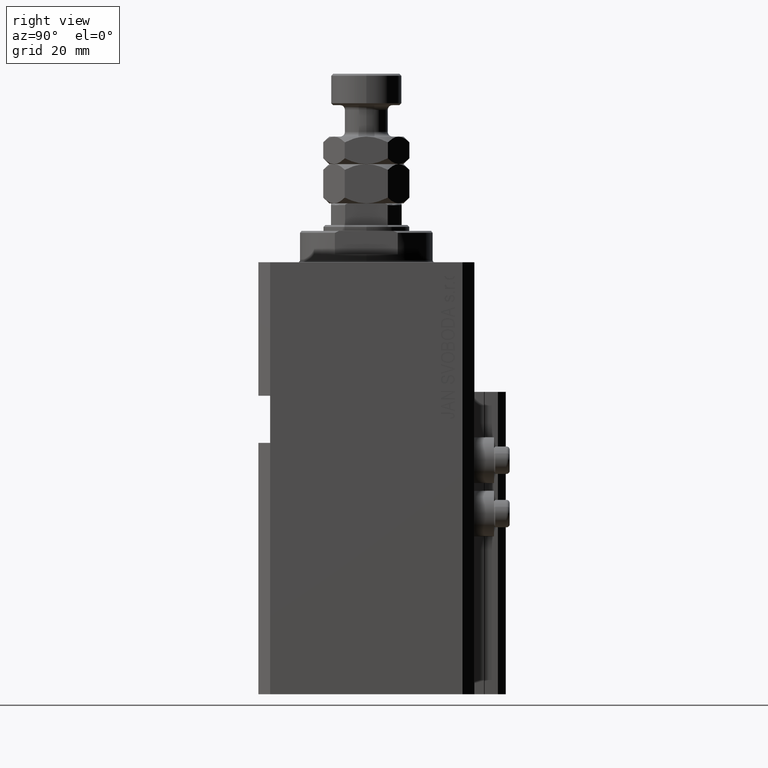
[diagram: clean part render]
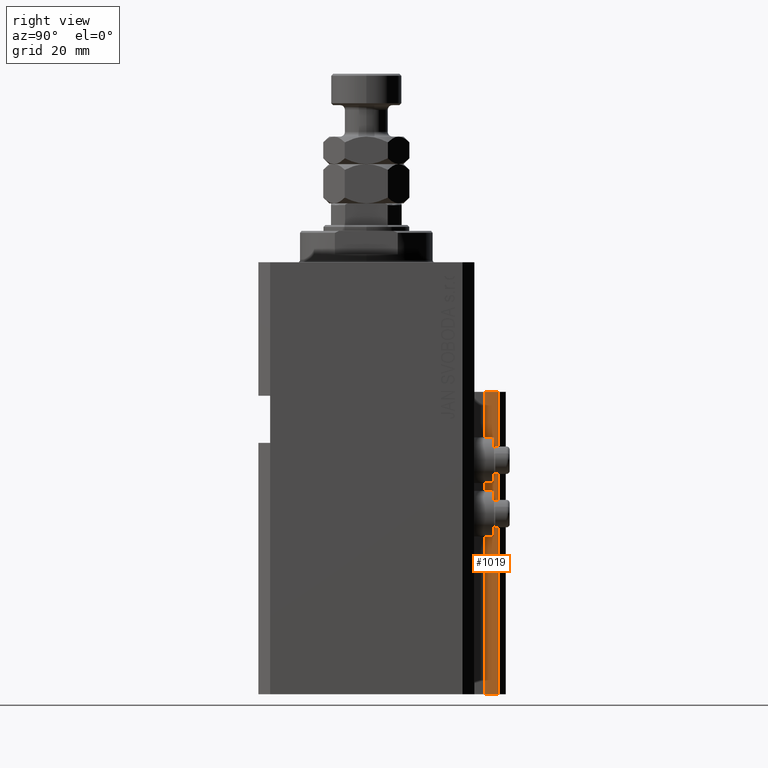
[diagram: same view with one face highlighted and labeled with its STEP entity id]
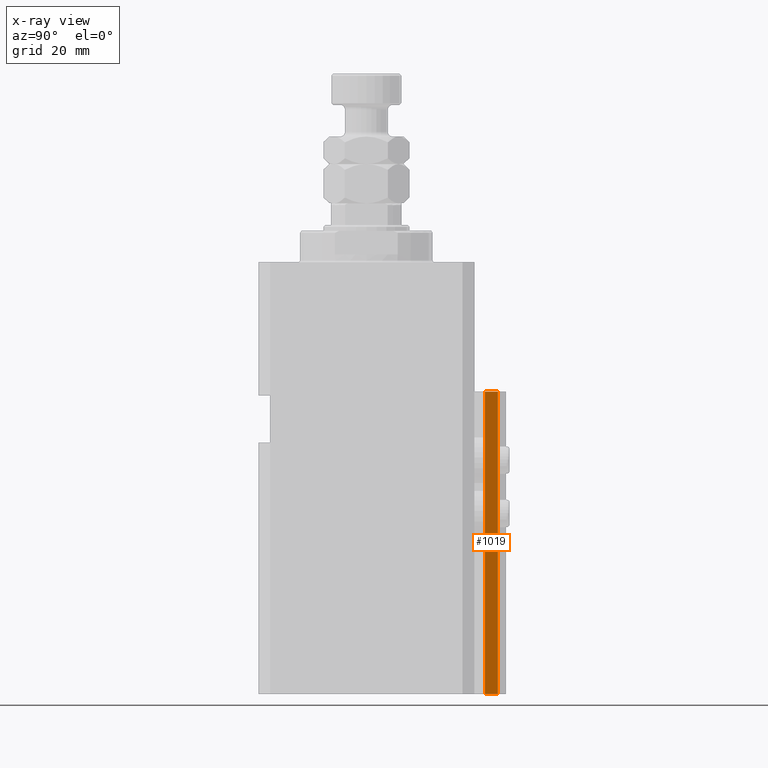
[diagram: x-ray of the same camera — body ghosted, the highlighted face saturated]
A machine part, right view. The second image highlights one B-rep face of the part: STEP entity #1019.
The next image is the same camera in x-ray: the body ghosted, the highlighted face saturated — about 0% of this face is hidden behind the body in this view.
In plain terms, the highlighted planar face has unit normal (1, 0, 0).
Its self-contained STEP definition (entity closure, byte-faithful):
#265 = LINE ( 'NONE', #41876, #15796 ) ;
#922 = DIRECTION ( 'NONE',  ( 0.000000000000000000, 0.000000000000000000, 1.000000000000000000 ) ) ;
#1019 = ADVANCED_FACE ( 'NONE', ( #37627 ), #41343, .T. ) ;
#1188 = EDGE_CURVE ( 'NONE', #2620, #20755, #28899, .T. ) ;
#2423 = ORIENTED_EDGE ( 'NONE', *, *, #6852, .F. ) ;
#2620 = VERTEX_POINT ( 'NONE', #40672 ) ;
#2672 = VERTEX_POINT ( 'NONE', #17640 ) ;
#2862 = CARTESIAN_POINT ( 'NONE',  ( 12.00000000000000178, 30.20000000000002061, -110.0000000000000000 ) ) ;
#3949 = DIRECTION ( 'NONE',  ( -5.256737805990334897E-16, 1.000000000000000000, 0.000000000000000000 ) ) ;
#4138 = VERTEX_POINT ( 'NONE', #48837 ) ;
#6852 = EDGE_CURVE ( 'NONE', #4138, #2672, #8172, .T. ) ;
#7144 = VECTOR ( 'NONE', #3949, 1000.000000000000000 ) ;
#8172 = LINE ( 'NONE', #30231, #7144 ) ;
#9375 = EDGE_CURVE ( 'NONE', #2620, #4138, #265, .T. ) ;
#11425 = CARTESIAN_POINT ( 'NONE',  ( 12.00000000000000000, 33.50000000000001421, -110.0000000000000000 ) ) ;
#15380 = DIRECTION ( 'NONE',  ( 0.000000000000000000, 0.000000000000000000, 1.000000000000000000 ) ) ;
#15796 = VECTOR ( 'NONE', #15380, 1000.000000000000000 ) ;
#17640 = CARTESIAN_POINT ( 'NONE',  ( 12.00000000000000000, 33.50000000000001421, -33.00000000000000000 ) ) ;
#17777 = ORIENTED_EDGE ( 'NONE', *, *, #26215, .T. ) ;
#20755 = VERTEX_POINT ( 'NONE', #11425 ) ;
#22500 = CARTESIAN_POINT ( 'NONE',  ( 12.00000000000000178, 30.20000000000002061, -110.0000000000000000 ) ) ;
#22977 = DIRECTION ( 'NONE',  ( -5.256737805990335883E-16, 1.000000000000000000, 0.000000000000000000 ) ) ;
#23462 = CARTESIAN_POINT ( 'NONE',  ( 12.00000000000000000, 33.50000000000001421, -110.0000000000000000 ) ) ;
#26215 = EDGE_CURVE ( 'NONE', #20755, #2672, #30422, .T. ) ;
#28899 = LINE ( 'NONE', #2862, #46483 ) ;
#29137 = DIRECTION ( 'NONE',  ( -5.256737805990334897E-16, 1.000000000000000000, 0.000000000000000000 ) ) ;
#30231 = CARTESIAN_POINT ( 'NONE',  ( 12.00000000000000178, 30.20000000000002061, -33.00000000000000000 ) ) ;
#30422 = LINE ( 'NONE', #23462, #44167 ) ;
#30704 = ORIENTED_EDGE ( 'NONE', *, *, #9375, .F. ) ;
#33890 = ORIENTED_EDGE ( 'NONE', *, *, #1188, .T. ) ;
#35911 = EDGE_LOOP ( 'NONE', ( #2423, #30704, #33890, #17777 ) ) ;
#37627 = FACE_OUTER_BOUND ( 'NONE', #35911, .T. ) ;
#40672 = CARTESIAN_POINT ( 'NONE',  ( 12.00000000000000178, 30.20000000000002061, -110.0000000000000000 ) ) ;
#40942 = AXIS2_PLACEMENT_3D ( 'NONE', #22500, #45041, #22977 ) ;
#41343 = PLANE ( 'NONE',  #40942 ) ;
#41876 = CARTESIAN_POINT ( 'NONE',  ( 12.00000000000000178, 30.20000000000002061, -110.0000000000000000 ) ) ;
#44167 = VECTOR ( 'NONE', #922, 1000.000000000000000 ) ;
#45041 = DIRECTION ( 'NONE',  ( 1.000000000000000000, 5.256737805990335883E-16, -0.000000000000000000 ) ) ;
#46483 = VECTOR ( 'NONE', #29137, 1000.000000000000000 ) ;
#48837 = CARTESIAN_POINT ( 'NONE',  ( 12.00000000000000178, 30.20000000000002061, -33.00000000000000000 ) ) ;